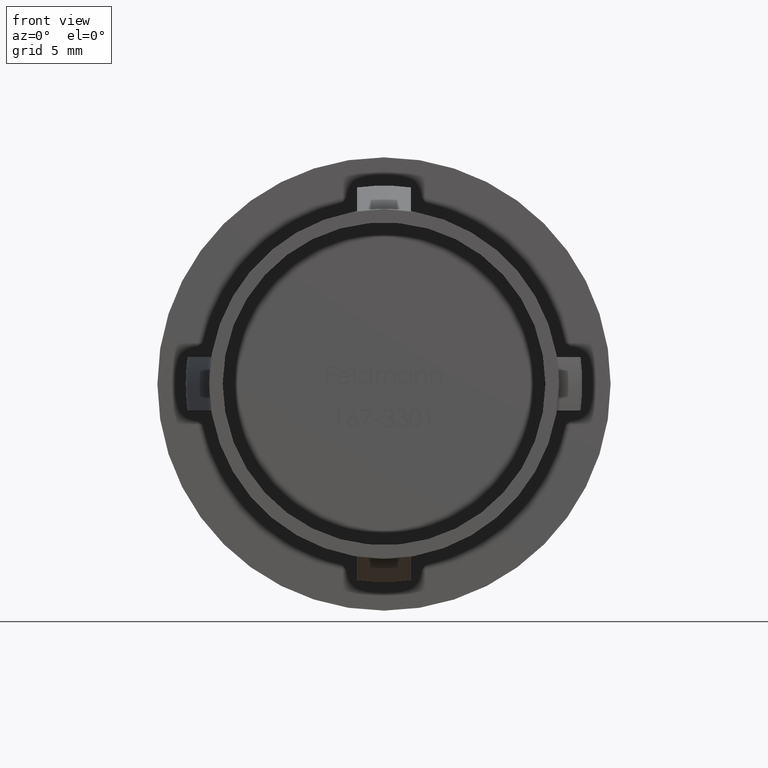
[diagram: clean part render]
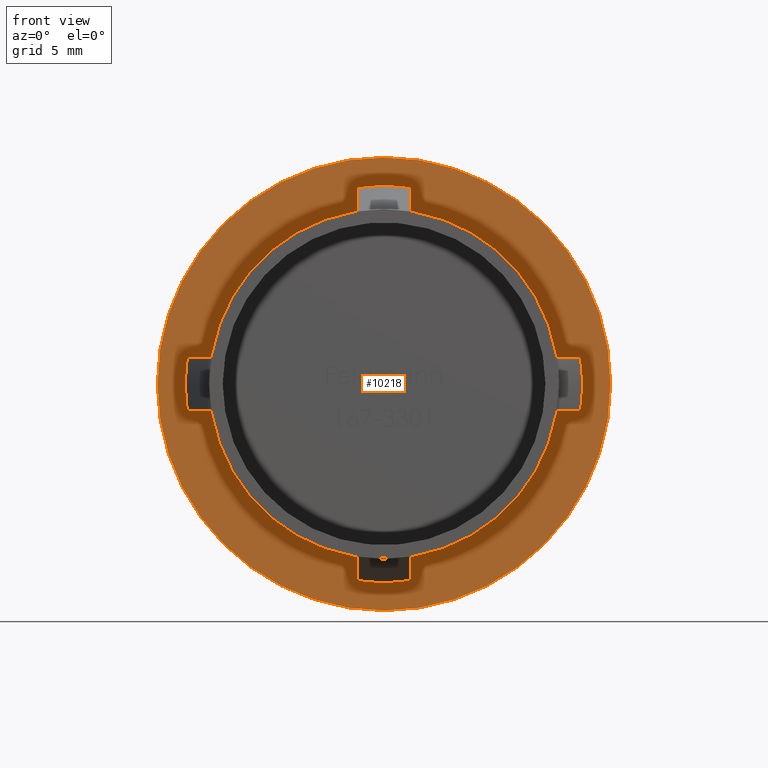
[diagram: same view with one face highlighted and labeled with its STEP entity id]
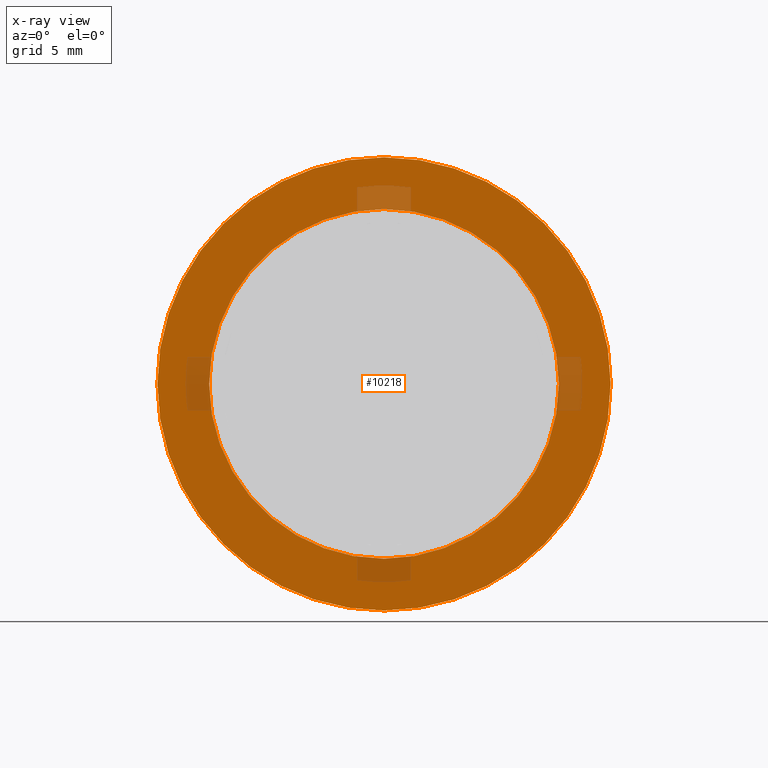
[diagram: x-ray of the same camera — body ghosted, the highlighted face saturated]
A machine part, front view. The second image highlights one B-rep face of the part: STEP entity #10218.
The next image is the same camera in x-ray: the body ghosted, the highlighted face saturated — about 8% of this face is hidden behind the body in this view.
In plain terms, the highlighted planar face has unit normal (0, 1, -0).
Its self-contained STEP definition (entity closure, byte-faithful):
#279 = CARTESIAN_POINT ( 'NONE',  ( 1.836970198721034600E-016, 23.69999999999999900, 0.0000000000000000000 ) ) ;
#372 = AXIS2_PLACEMENT_3D ( 'NONE', #279, #9331, #13779 ) ;
#421 = CARTESIAN_POINT ( 'NONE',  ( 1.836970198721034900E-016, 23.69999999999999900, 0.0000000000000000000 ) ) ;
#1223 = DIRECTION ( 'NONE',  ( 7.347880794884120200E-017, 1.000000000000000000, -0.0000000000000000000 ) ) ;
#2002 = VERTEX_POINT ( 'NONE', #5406 ) ;
#2157 = VERTEX_POINT ( 'NONE', #12360 ) ;
#2886 = CIRCLE ( 'NONE', #11200, 13.00000000000000000 ) ;
#2992 = EDGE_LOOP ( 'NONE', ( #12908, #3083 ) ) ;
#3066 = CARTESIAN_POINT ( 'NONE',  ( -16.84999999999999800, 23.69999999999999900, 0.0000000000000000000 ) ) ;
#3083 = ORIENTED_EDGE ( 'NONE', *, *, #9018, .F. ) ;
#3207 = VERTEX_POINT ( 'NONE', #3066 ) ;
#3258 = DIRECTION ( 'NONE',  ( -1.000000000000000000, 7.347880794884120200E-017, 0.0000000000000000000 ) ) ;
#3493 = ORIENTED_EDGE ( 'NONE', *, *, #14339, .T. ) ;
#3754 = CARTESIAN_POINT ( 'NONE',  ( -13.00000000000000000, 23.69999999999999900, 0.0000000000000000000 ) ) ;
#4351 = FACE_OUTER_BOUND ( 'NONE', #2992, .T. ) ;
#4375 = DIRECTION ( 'NONE',  ( -1.000000000000000000, 0.0000000000000000000, 0.0000000000000000000 ) ) ;
#5202 = AXIS2_PLACEMENT_3D ( 'NONE', #7885, #13603, #4375 ) ;
#5339 = DIRECTION ( 'NONE',  ( 7.347880794884120200E-017, 1.000000000000000000, -0.0000000000000000000 ) ) ;
#5406 = CARTESIAN_POINT ( 'NONE',  ( 13.00000000000000000, 23.69999999999999900, 1.592040838891559500E-015 ) ) ;
#5464 = EDGE_CURVE ( 'NONE', #3207, #2157, #11775, .T. ) ;
#6578 = PLANE ( 'NONE',  #12895 ) ;
#7202 = DIRECTION ( 'NONE',  ( 7.347880794884120200E-017, 1.000000000000000000, -0.0000000000000000000 ) ) ;
#7660 = VERTEX_POINT ( 'NONE', #3754 ) ;
#7885 = CARTESIAN_POINT ( 'NONE',  ( 1.836970198721034900E-016, 23.69999999999999900, 0.0000000000000000000 ) ) ;
#7891 = DIRECTION ( 'NONE',  ( -1.000000000000000000, 0.0000000000000000000, 0.0000000000000000000 ) ) ;
#8246 = DIRECTION ( 'NONE',  ( -1.000000000000000000, 0.0000000000000000000, 0.0000000000000000000 ) ) ;
#9018 = EDGE_CURVE ( 'NONE', #2157, #3207, #12334, .T. ) ;
#9056 = EDGE_CURVE ( 'NONE', #2002, #7660, #13195, .T. ) ;
#9331 = DIRECTION ( 'NONE',  ( 7.347880794884120200E-017, 1.000000000000000000, -0.0000000000000000000 ) ) ;
#9546 = AXIS2_PLACEMENT_3D ( 'NONE', #421, #7202, #8246 ) ;
#10016 = FACE_BOUND ( 'NONE', #13290, .T. ) ;
#10218 = ADVANCED_FACE ( 'NONE', ( #4351, #10016 ), #6578, .F. ) ;
#11190 = ORIENTED_EDGE ( 'NONE', *, *, #9056, .T. ) ;
#11200 = AXIS2_PLACEMENT_3D ( 'NONE', #13658, #1223, #7891 ) ;
#11775 = CIRCLE ( 'NONE', #5202, 16.84999999999999800 ) ;
#12334 = CIRCLE ( 'NONE', #9546, 16.84999999999999800 ) ;
#12360 = CARTESIAN_POINT ( 'NONE',  ( 16.84999999999999800, 23.69999999999999900, 2.063529856563289500E-015 ) ) ;
#12895 = AXIS2_PLACEMENT_3D ( 'NONE', #13287, #5339, #3258 ) ;
#12908 = ORIENTED_EDGE ( 'NONE', *, *, #5464, .F. ) ;
#13195 = CIRCLE ( 'NONE', #372, 13.00000000000000000 ) ;
#13287 = CARTESIAN_POINT ( 'NONE',  ( 16.84999999999999800, 23.69999999999999900, 0.0000000000000000000 ) ) ;
#13290 = EDGE_LOOP ( 'NONE', ( #3493, #11190 ) ) ;
#13603 = DIRECTION ( 'NONE',  ( 7.347880794884120200E-017, 1.000000000000000000, -0.0000000000000000000 ) ) ;
#13658 = CARTESIAN_POINT ( 'NONE',  ( 1.836970198721034600E-016, 23.69999999999999900, 0.0000000000000000000 ) ) ;
#13779 = DIRECTION ( 'NONE',  ( -1.000000000000000000, 0.0000000000000000000, 0.0000000000000000000 ) ) ;
#14339 = EDGE_CURVE ( 'NONE', #7660, #2002, #2886, .T. ) ;